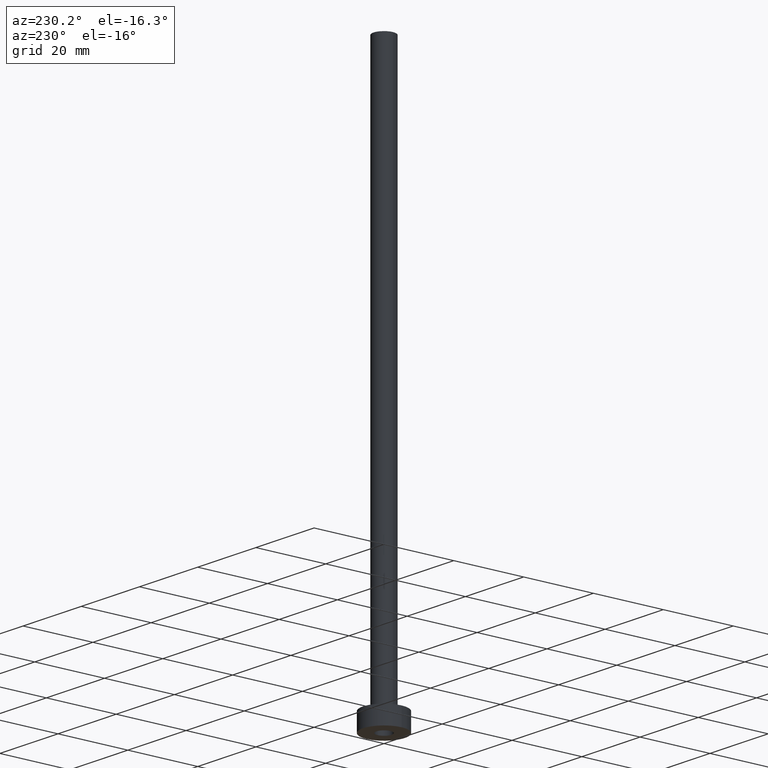
[diagram: clean part render]
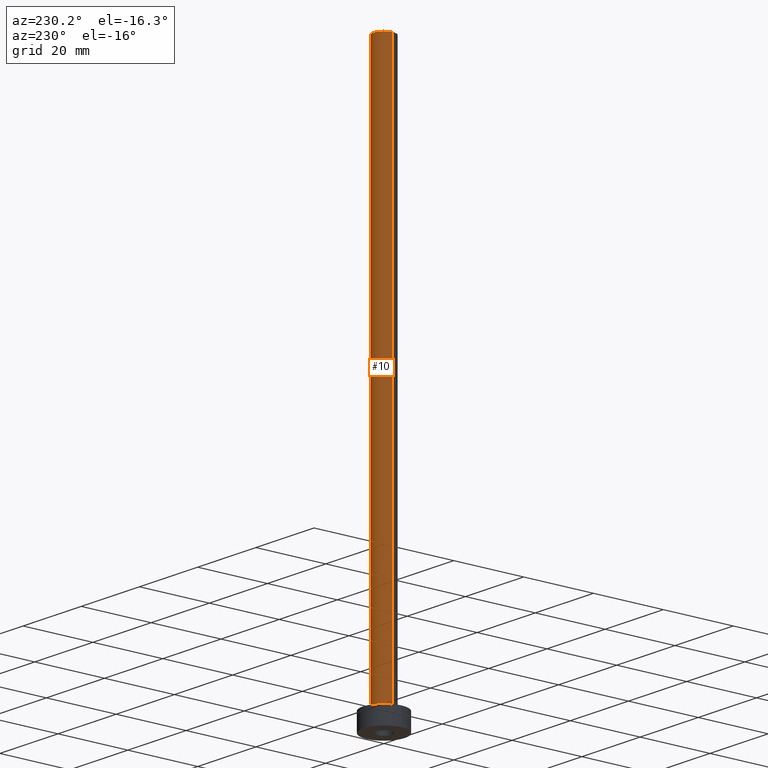
[diagram: same view with one face highlighted and labeled with its STEP entity id]
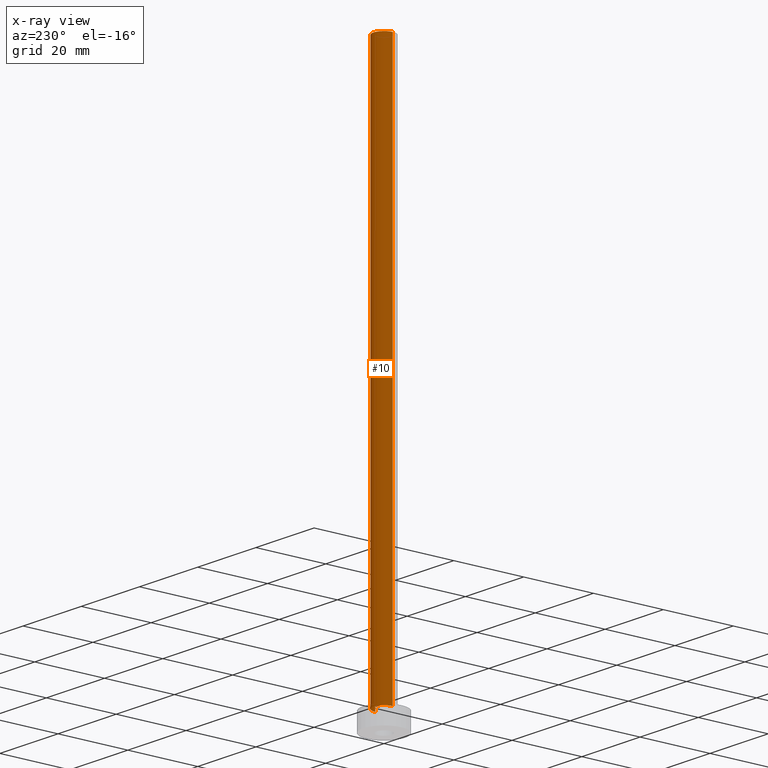
[diagram: x-ray of the same camera — body ghosted, the highlighted face saturated]
A machine part, auxiliary view. The second image highlights one B-rep face of the part: STEP entity #10.
The next image is the same camera in x-ray: the body ghosted, the highlighted face saturated — about 0% of this face is hidden behind the body in this view.
In plain terms, the highlighted cylindrical surface (edge-blend (fillet) strip) has radius 3 mm, axis along (-0, -0, -1).
Its self-contained STEP definition (entity closure, byte-faithful):
#1 = EDGE_LOOP ( 'NONE', ( #184, #66, #251, #192 ) ) ;
#6 = CARTESIAN_POINT ( 'NONE',  ( 3.000000000000000444, 3.673940397442060361E-16, 160.0000000000000000 ) ) ;
#10 = ADVANCED_FACE ( 'NONE', ( #301 ), #418, .T. ) ;
#43 = LINE ( 'NONE', #6, #448 ) ;
#58 = CARTESIAN_POINT ( 'NONE',  ( 0.000000000000000000, 0.000000000000000000, 5.500000000000005329 ) ) ;
#59 = DIRECTION ( 'NONE',  ( -1.000000000000000000, 0.000000000000000000, 0.000000000000000000 ) ) ;
#66 = ORIENTED_EDGE ( 'NONE', *, *, #78, .T. ) ;
#77 = VERTEX_POINT ( 'NONE', #359 ) ;
#78 = EDGE_CURVE ( 'NONE', #362, #383, #43, .T. ) ;
#98 = AXIS2_PLACEMENT_3D ( 'NONE', #58, #170, #456 ) ;
#149 = AXIS2_PLACEMENT_3D ( 'NONE', #380, #335, #59 ) ;
#170 = DIRECTION ( 'NONE',  ( 0.000000000000000000, 0.000000000000000000, 1.000000000000000000 ) ) ;
#184 = ORIENTED_EDGE ( 'NONE', *, *, #369, .F. ) ;
#192 = ORIENTED_EDGE ( 'NONE', *, *, #275, .F. ) ;
#207 = CIRCLE ( 'NONE', #98, 3.000000000000000444 ) ;
#210 = DIRECTION ( 'NONE',  ( 1.000000000000000000, 0.000000000000000000, 0.000000000000000000 ) ) ;
#244 = DIRECTION ( 'NONE',  ( 0.000000000000000000, 0.000000000000000000, 1.000000000000000000 ) ) ;
#251 = ORIENTED_EDGE ( 'NONE', *, *, #339, .T. ) ;
#275 = EDGE_CURVE ( 'NONE', #328, #77, #401, .T. ) ;
#301 = FACE_OUTER_BOUND ( 'NONE', #1, .T. ) ;
#310 = DIRECTION ( 'NONE',  ( -0.000000000000000000, -0.000000000000000000, -1.000000000000000000 ) ) ;
#323 = AXIS2_PLACEMENT_3D ( 'NONE', #429, #244, #210 ) ;
#328 = VERTEX_POINT ( 'NONE', #347 ) ;
#335 = DIRECTION ( 'NONE',  ( -0.000000000000000000, -0.000000000000000000, -1.000000000000000000 ) ) ;
#339 = EDGE_CURVE ( 'NONE', #383, #77, #207, .T. ) ;
#345 = CARTESIAN_POINT ( 'NONE',  ( -3.000000000000000444, 0.000000000000000000, 160.0000000000000000 ) ) ;
#347 = CARTESIAN_POINT ( 'NONE',  ( -3.000000000000000444, 0.000000000000000000, 160.0000000000000000 ) ) ;
#359 = CARTESIAN_POINT ( 'NONE',  ( -3.000000000000000444, 0.000000000000000000, 5.500000000000005329 ) ) ;
#360 = CARTESIAN_POINT ( 'NONE',  ( 3.000000000000000444, 3.673940397442060361E-16, 160.0000000000000000 ) ) ;
#361 = VECTOR ( 'NONE', #310, 1000.000000000000000 ) ;
#362 = VERTEX_POINT ( 'NONE', #360 ) ;
#369 = EDGE_CURVE ( 'NONE', #362, #328, #434, .T. ) ;
#380 = CARTESIAN_POINT ( 'NONE',  ( 0.000000000000000000, 0.000000000000000000, 160.0000000000000000 ) ) ;
#383 = VERTEX_POINT ( 'NONE', #399 ) ;
#398 = DIRECTION ( 'NONE',  ( -0.000000000000000000, -0.000000000000000000, -1.000000000000000000 ) ) ;
#399 = CARTESIAN_POINT ( 'NONE',  ( 3.000000000000000444, 3.673940397442060361E-16, 5.500000000000005329 ) ) ;
#401 = LINE ( 'NONE', #345, #361 ) ;
#418 = CYLINDRICAL_SURFACE ( 'NONE', #149, 3.000000000000000444 ) ;
#429 = CARTESIAN_POINT ( 'NONE',  ( 0.000000000000000000, 0.000000000000000000, 160.0000000000000000 ) ) ;
#434 = CIRCLE ( 'NONE', #323, 3.000000000000000444 ) ;
#448 = VECTOR ( 'NONE', #398, 1000.000000000000000 ) ;
#456 = DIRECTION ( 'NONE',  ( 1.000000000000000000, 0.000000000000000000, 0.000000000000000000 ) ) ;